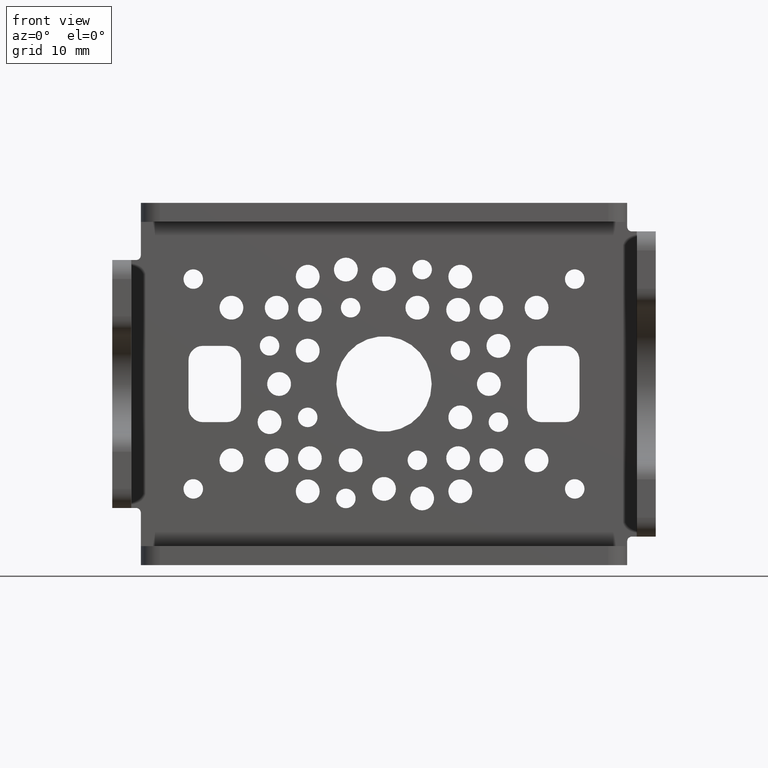
[diagram: clean part render]
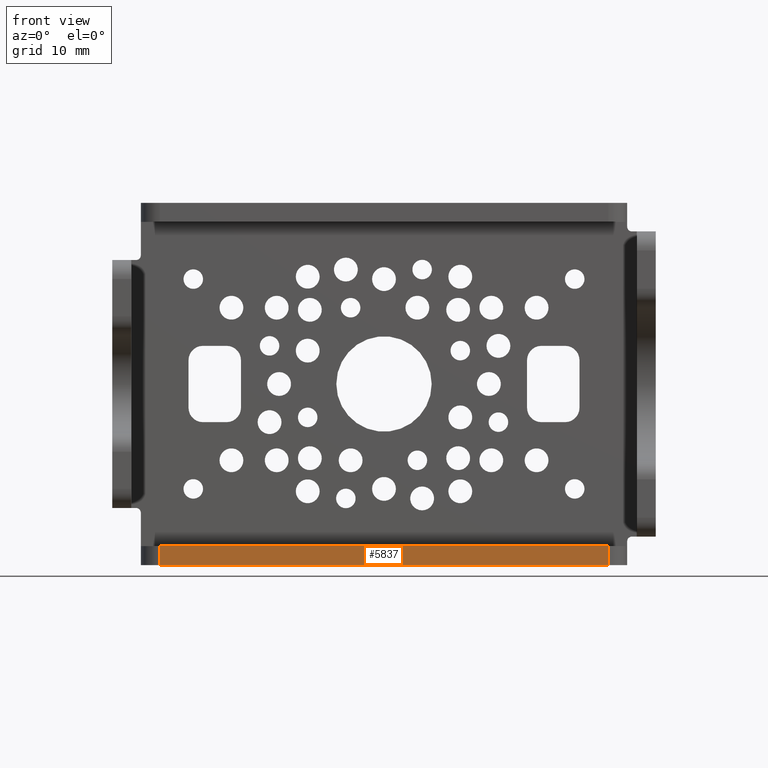
[diagram: same view with one face highlighted and labeled with its STEP entity id]
A machine part, front view. The second image highlights one B-rep face of the part: STEP entity #5837.
In plain terms, the highlighted planar face has unit normal (0, -1, 0).
Its self-contained STEP definition (entity closure, byte-faithful):
#1996=DIRECTION('',(-1.E0,0.E0,0.E0));
#1997=VECTOR('',#1996,4.7E1);
#1998=CARTESIAN_POINT('',(2.35E1,-6.E0,-1.9E1));
#1999=LINE('',#1998,#1997);
#2013=DIRECTION('',(0.E0,0.E0,-1.E0));
#2014=VECTOR('',#2013,2.E0);
#2015=CARTESIAN_POINT('',(-2.35E1,-6.E0,-1.7E1));
#2016=LINE('',#2015,#2014);
#2017=DIRECTION('',(0.E0,0.E0,-1.E0));
#2018=VECTOR('',#2017,2.E0);
#2019=CARTESIAN_POINT('',(2.35E1,-6.E0,-1.7E1));
#2020=LINE('',#2019,#2018);
#2030=DIRECTION('',(-1.E0,0.E0,0.E0));
#2031=VECTOR('',#2030,4.7E1);
#2032=CARTESIAN_POINT('',(2.35E1,-6.E0,-1.7E1));
#2033=LINE('',#2032,#2031);
#3027=CARTESIAN_POINT('',(-2.35E1,-6.E0,-1.9E1));
#3029=VERTEX_POINT('',#3027);
#3033=CARTESIAN_POINT('',(-2.35E1,-6.E0,-1.7E1));
#3034=VERTEX_POINT('',#3033);
#3036=CARTESIAN_POINT('',(2.35E1,-6.E0,-1.9E1));
#3038=VERTEX_POINT('',#3036);
#3039=CARTESIAN_POINT('',(2.35E1,-6.E0,-1.7E1));
#3040=VERTEX_POINT('',#3039);
#5824=CARTESIAN_POINT('',(0.E0,-6.E0,-1.8E1));
#5825=DIRECTION('',(0.E0,-1.E0,0.E0));
#5826=DIRECTION('',(-1.E0,0.E0,0.E0));
#5827=AXIS2_PLACEMENT_3D('',#5824,#5825,#5826);
#5828=PLANE('',#5827);
#5829=ORIENTED_EDGE('',*,*,#5802,.F.);
#5831=ORIENTED_EDGE('',*,*,#5830,.F.);
#5833=ORIENTED_EDGE('',*,*,#5832,.T.);
#5834=ORIENTED_EDGE('',*,*,#5813,.T.);
#5835=EDGE_LOOP('',(#5829,#5831,#5833,#5834));
#5836=FACE_OUTER_BOUND('',#5835,.F.);
#5837=ADVANCED_FACE('',(#5836),#5828,.T.);
#5802=EDGE_CURVE('',#3034,#3029,#2016,.T.);
#5813=EDGE_CURVE('',#3038,#3029,#1999,.T.);
#5830=EDGE_CURVE('',#3040,#3034,#2033,.T.);
#5832=EDGE_CURVE('',#3040,#3038,#2020,.T.);